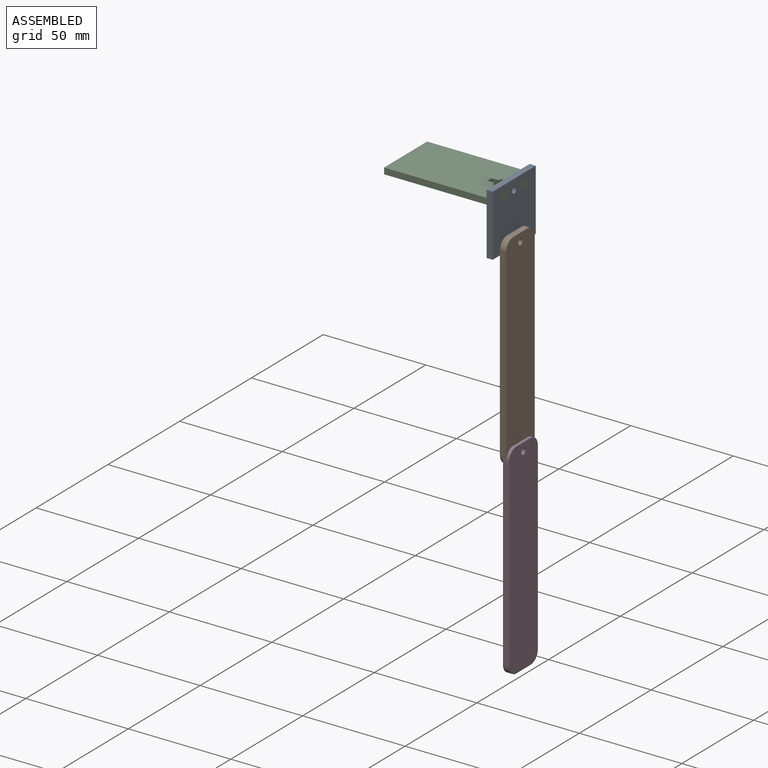
[diagram: assembled view]
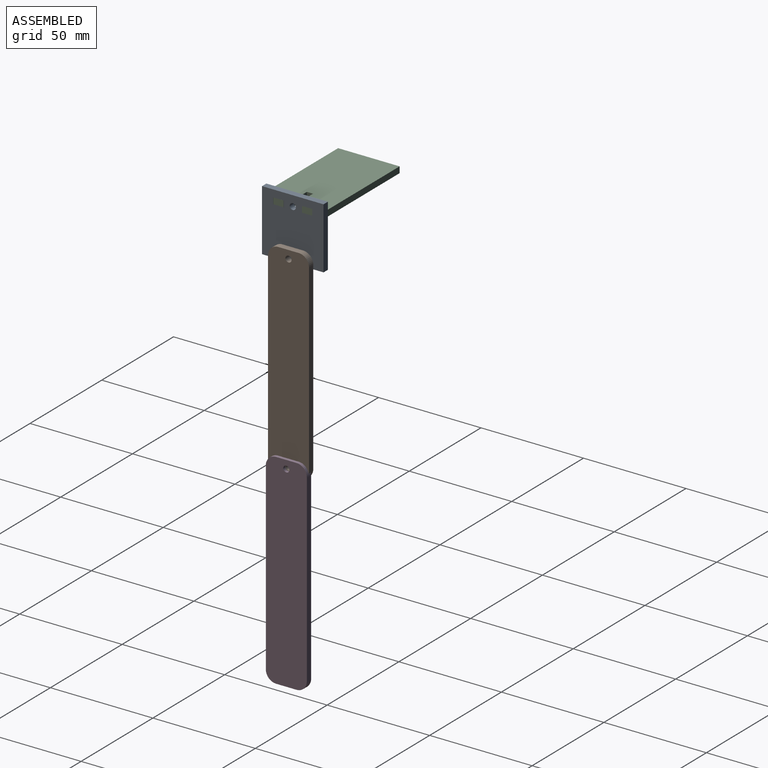
[diagram: assembled view, second angle]
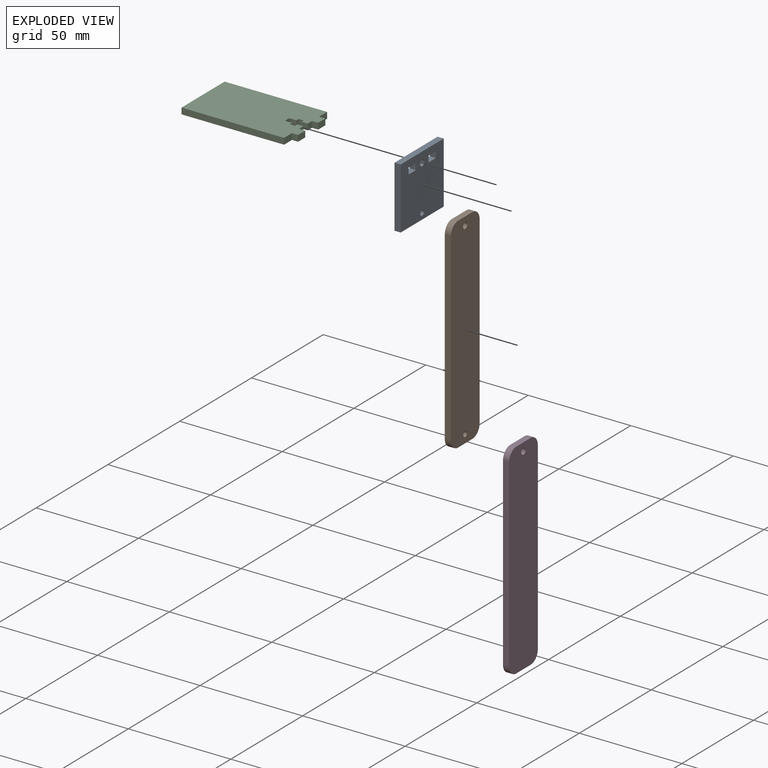
[diagram: exploded view]
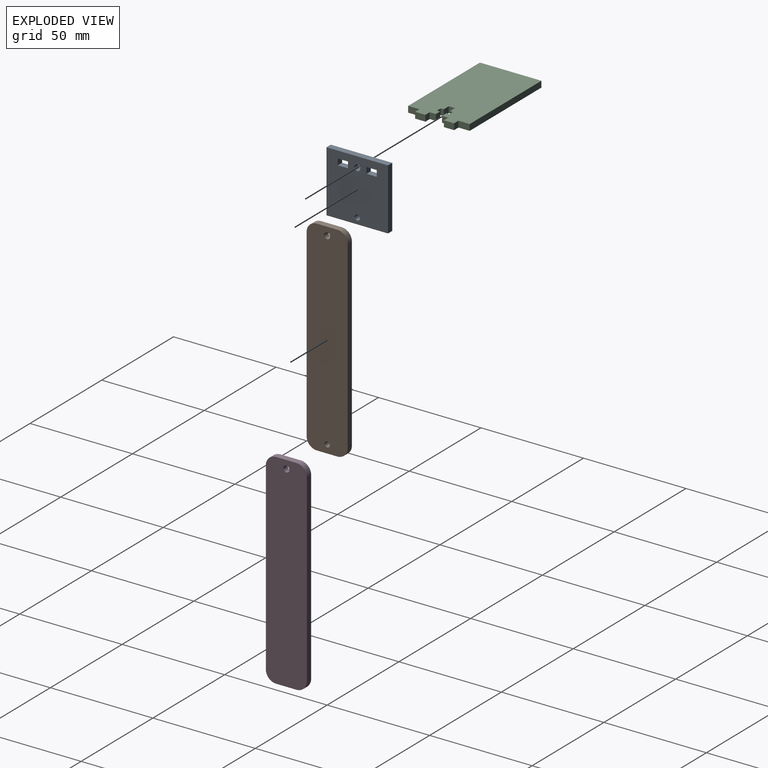
[diagram: exploded view, second angle]
ASSEMBLY  parts=4 mates=3
PART A: 16 faces, bbox 30x30x3 mm
  f0: plane 30x3mm, normal (0,1,0), area 90mm2, adj f1,f13,f14,f15
  f1: plane 30x3mm, normal (-1,0,0), area 90mm2, adj f0,f2,f14,f15
  f2: plane 30x3mm, normal (0,-1,0), area 90mm2, adj f1,f13,f14,f15
  f3: plane 5x3mm, normal (1,0,0), area 15mm2, adj f4,f11,f14,f15
  f4: plane 3x3mm, normal (0,-1,0), area 9mm2, adj f3,f5,f14,f15
  f5: plane 5x3mm, normal (-1,0,0), area 15mm2, adj f4,f11,f14,f15
  f6: plane 5x3mm, normal (1,0,0), area 15mm2, adj f7,f12,f14,f15
  f7: plane 3x3mm, normal (0,-1,0), area 9mm2, adj f6,f8,f14,f15
  f8: plane 5x3mm, normal (-1,0,0), area 15mm2, adj f7,f12,f14,f15
  f9: cylinder r=1.5mm len=3mm, axis (0,0,-1), area 28.3mm2, adj f14,f15
  f10: cylinder r=1.3mm len=3mm, axis (0,0,-1), area 24.5mm2, adj f14,f15
  f11: plane 3x3mm, normal (0,1,0), area 9mm2, adj f3,f5,f14,f15
  f12: plane 3x3mm, normal (0,1,0), area 9mm2, adj f6,f8,f14,f15
  f13: plane 30x3mm, normal (1,0,0), area 90mm2, adj f0,f2,f14,f15
  f14: plane 30x30mm, normal (0,0,1), area 857.6mm2, adj f0,f1,f2,f3,f4,f5,f6,f7
  f15: plane 30x30mm, normal (0,0,-1), area 857.6mm2, adj f0,f1,f2,f3,f4,f5,f6,f7
PART B: 12 faces, bbox 100x20x3 mm
  f0: plane 90x3mm, normal (0,1,0), area 270mm2, adj f1,f9,f10,f11
  f1: cylinder r=5mm len=5mm, axis (0,0,-1), area 23.6mm2, adj f0,f2,f10,f11
  f2: plane 10x3mm, normal (-1,0,0), area 30mm2, adj f1,f3,f10,f11
  f3: cylinder r=5mm len=5mm, axis (0,0,-1), area 23.6mm2, adj f2,f4,f10,f11
  f4: plane 90x3mm, normal (0,-1,0), area 270mm2, adj f3,f5,f10,f11
  f5: cylinder r=5mm len=5mm, axis (0,0,-1), area 23.6mm2, adj f4,f6,f10,f11
  f6: plane 10x3mm, normal (1,0,0), area 30mm2, adj f5,f9,f10,f11
  f7: cylinder r=1.5mm len=3mm, axis (0,0,-1), area 28.3mm2, adj f10,f11
  f8: cylinder r=1.3mm len=3mm, axis (0,0,-1), area 24.5mm2, adj f10,f11
  f9: cylinder r=5mm len=5mm, axis (0,0,-1), area 23.6mm2, adj f0,f6,f10,f11
  f10: plane 100x20mm, normal (0,0,1), area 1966.2mm2, adj f0,f1,f2,f3,f4,f5,f6,f7
  f11: plane 100x20mm, normal (0,0,-1), area 1966.2mm2, adj f0,f1,f2,f3,f4,f5,f6,f7
PART C: 26 faces, bbox 53x30x3 mm
  f0: plane 3x3mm, normal (0,-1,0), area 9mm2, adj f1,f23,f24,f25
  f1: plane 5x3mm, normal (1,0,0), area 15mm2, adj f0,f2,f24,f25
  f2: plane 3x3mm, normal (0,1,0), area 9mm2, adj f1,f3,f24,f25
  f3: plane 5.5x3mm, normal (1,0,0), area 16.5mm2, adj f2,f4,f24,f25
  f4: plane 50x3mm, normal (0,1,0), area 150mm2, adj f3,f5,f24,f25
  f5: plane 30x3mm, normal (-1,0,0), area 90mm2, adj f4,f6,f24,f25
  f6: plane 50x3mm, normal (0,-1,0), area 150mm2, adj f5,f7,f24,f25
  f7: plane 5.5x3mm, normal (1,0,0), area 16.5mm2, adj f6,f8,f24,f25
  f8: plane 3x3mm, normal (0,-1,0), area 9mm2, adj f7,f9,f24,f25
  f9: plane 5x3mm, normal (1,0,0), area 15mm2, adj f8,f10,f24,f25
  f10: plane 3x3mm, normal (0,1,0), area 9mm2, adj f9,f11,f24,f25
  f11: plane 3x3mm, normal (1,0,0), area 9mm2, adj f10,f12,f24,f25
  f12: plane 3x3mm, normal (0,1,0), area 9mm2, adj f11,f13,f24,f25
  f13: plane 3x1.5mm, normal (-1,0,0), area 4.5mm2, adj f12,f14,f24,f25
  f14: plane 3x2.5mm, normal (0,1,0), area 7.5mm2, adj f13,f15,f24,f25
  f15: plane 3x1.5mm, normal (1,0,0), area 4.5mm2, adj f14,f16,f24,f25
  f16: plane 3.5x3mm, normal (0,1,0), area 10.5mm2, adj f15,f17,f24,f25
  f17: plane 3x3mm, normal (1,0,0), area 9mm2, adj f16,f18,f24,f25
  f18: plane 3.5x3mm, normal (0,-1,0), area 10.5mm2, adj f17,f19,f24,f25
  f19: plane 3x1.5mm, normal (1,0,0), area 4.5mm2, adj f18,f20,f24,f25
  f20: plane 3x2.5mm, normal (0,-1,0), area 7.5mm2, adj f19,f21,f24,f25
  f21: plane 3x1.5mm, normal (-1,0,0), area 4.5mm2, adj f20,f22,f24,f25
  f22: plane 3x3mm, normal (0,-1,0), area 9mm2, adj f21,f23,f24,f25
  f23: plane 3x3mm, normal (1,0,0), area 9mm2, adj f0,f22,f24,f25
  f24: plane 53x30mm, normal (0,0,1), area 1495.5mm2, adj f0,f1,f2,f3,f4,f5,f6,f7
  f25: plane 53x30mm, normal (0,0,-1), area 1495.5mm2, adj f0,f1,f2,f3,f4,f5,f6,f7
PART D: 11 faces, bbox 100x20x3 mm
  f0: plane 90x3mm, normal (0,1,0), area 270mm2, adj f1,f8,f9,f10
  f1: cylinder r=5mm len=5mm, axis (0,0,-1), area 23.6mm2, adj f0,f2,f9,f10
  f2: plane 10x3mm, normal (-1,0,0), area 30mm2, adj f1,f3,f9,f10
  f3: cylinder r=5mm len=5mm, axis (0,0,-1), area 23.6mm2, adj f2,f4,f9,f10
  f4: plane 90x3mm, normal (0,-1,0), area 270mm2, adj f3,f5,f9,f10
  f5: cylinder r=5mm len=5mm, axis (0,0,-1), area 23.6mm2, adj f4,f6,f9,f10
  f6: plane 10x3mm, normal (1,0,0), area 30mm2, adj f5,f8,f9,f10
  f7: cylinder r=1.5mm len=3mm, axis (0,0,-1), area 28.3mm2, adj f9,f10
  f8: cylinder r=5mm len=5mm, axis (0,0,-1), area 23.6mm2, adj f0,f6,f9,f10
  f9: plane 100x20mm, normal (0,0,1), area 1971.5mm2, adj f0,f1,f2,f3,f4,f5,f6,f7
  f10: plane 100x20mm, normal (0,0,-1), area 1971.5mm2, adj f0,f1,f2,f3,f4,f5,f6,f7
PLACE A rot(axis=(0.71,0,-0.71),180deg) t=(146.63,111.09,41.99)mm
PLACE B rot(axis=(0.71,0,-0.71),180deg) t=(149.63,51.13,19.56)mm
PLACE C t=(185.56,65.9,15.82)mm
PLACE D rot(axis=(0.71,0,-0.71),180deg) t=(151.13,26.28,-72.19)mm
MATE fastened A.f14 <-> C.f7  axis (-1,0,0) through (143.63,71.4,17.32)mm
MATE fastened B.f7 <-> A.f10  axis (-1,0,0) through (146.63,80.9,-4.68)mm
MATE fastened D.f7 <-> B.f8  axis (-1,0,0) through (148.13,80.9,-96.68)mm
